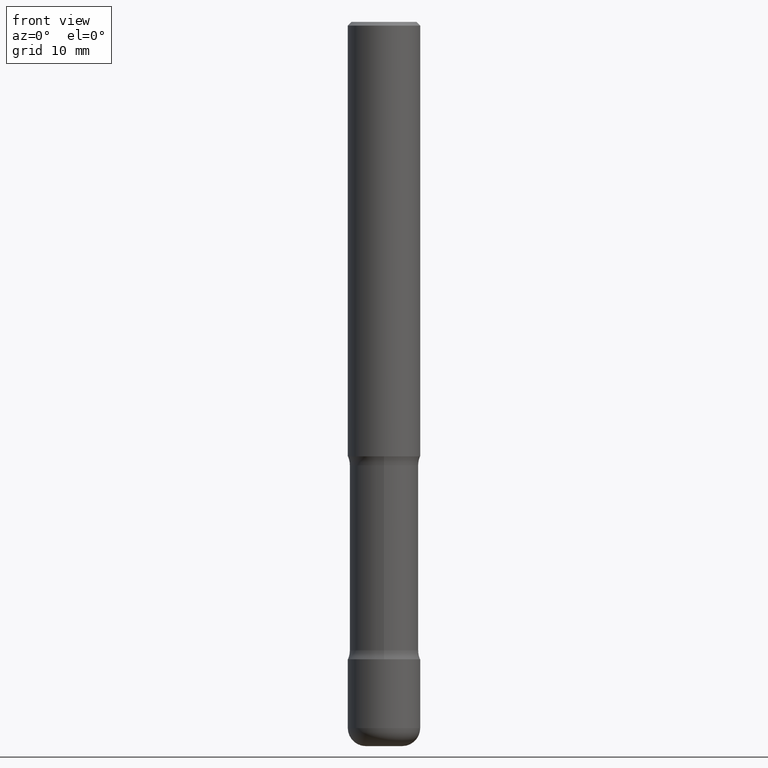
[diagram: clean part render]
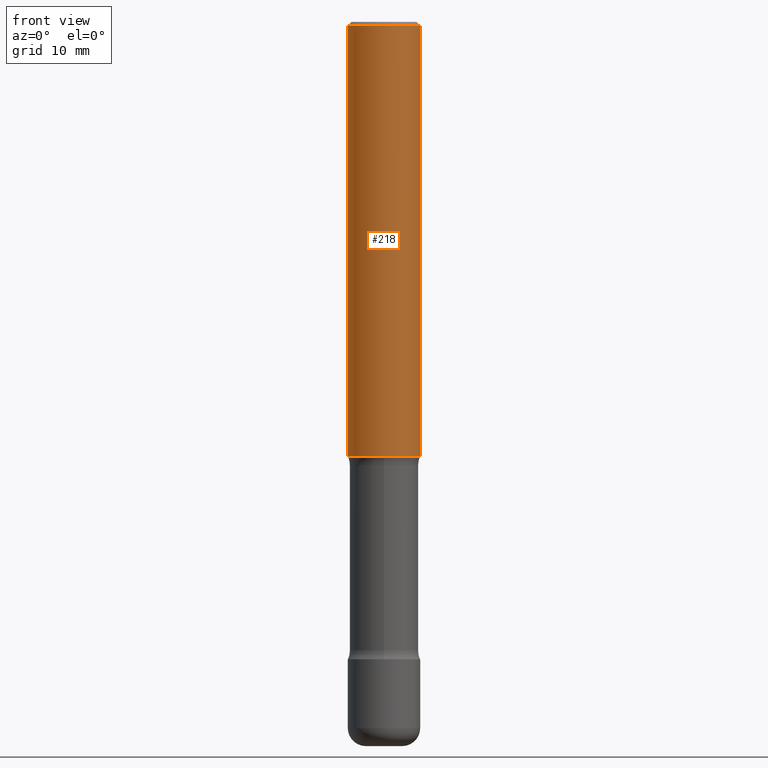
[diagram: same view with one face highlighted and labeled with its STEP entity id]
A machine part, front view. The second image highlights one B-rep face of the part: STEP entity #218.
In plain terms, the highlighted cylindrical surface (edge-blend (fillet) strip) has radius 5 mm, axis along (-0, 0, 1).
Its self-contained STEP definition (entity closure, byte-faithful):
#48 = AXIS2_PLACEMENT_3D ( 'NONE', #237, #116, #245 ) ;
#69 = CARTESIAN_POINT ( 'NONE',  ( 0.1968500000000000250, -1.374596203102541608E-15, 9.598753983154300858E-30 ) ) ;
#83 = VECTOR ( 'NONE', #363, 39.37007874015748143 ) ;
#88 = LINE ( 'NONE', #293, #250 ) ;
#92 = ORIENTED_EDGE ( 'NONE', *, *, #132, .T. ) ;
#95 = DIRECTION ( 'NONE',  ( -2.445468806185136877E-29, 3.491481338843145188E-15, 1.000000000000000000 ) ) ;
#98 = DIRECTION ( 'NONE',  ( -2.445468806185136597E-29, 3.491481338843145583E-15, 1.000000000000000000 ) ) ;
#105 = CYLINDRICAL_SURFACE ( 'NONE', #155, 0.1968500000000000250 ) ;
#109 = DIRECTION ( 'NONE',  ( 1.000000000000000000, -6.982962677686269866E-15, 0.000000000000000000 ) ) ;
#116 = DIRECTION ( 'NONE',  ( -2.445468806185136597E-29, 3.491481338843145583E-15, 1.000000000000000000 ) ) ;
#123 = VERTEX_POINT ( 'NONE', #284 ) ;
#131 = CARTESIAN_POINT ( 'NONE',  ( 0.1968499999999999139, -1.420318657638188530E-15, -0.02000000000000006981 ) ) ;
#132 = EDGE_CURVE ( 'NONE', #387, #487, #455, .T. ) ;
#134 = CARTESIAN_POINT ( 'NONE',  ( 0.1968500000000001082, -9.622173421717824390E-15, -2.362200000000000966 ) ) ;
#155 = AXIS2_PLACEMENT_3D ( 'NONE', #429, #344, #244 ) ;
#177 = EDGE_CURVE ( 'NONE', #123, #487, #497, .T. ) ;
#218 = ADVANCED_FACE ( 'NONE', ( #249 ), #105, .T. ) ;
#225 = VERTEX_POINT ( 'NONE', #370 ) ;
#237 = CARTESIAN_POINT ( 'NONE',  ( 4.890937612370289799E-31, -6.982962677686315028E-17, -0.02000000000000006981 ) ) ;
#244 = DIRECTION ( 'NONE',  ( 1.000000000000000000, -6.982962677686265922E-15, 4.876176775795935793E-29 ) ) ;
#245 = DIRECTION ( 'NONE',  ( 1.000000000000000000, -6.982962677686266711E-15, 0.000000000000000000 ) ) ;
#249 = FACE_OUTER_BOUND ( 'NONE', #485, .T. ) ;
#250 = VECTOR ( 'NONE', #95, 39.37007874015748143 ) ;
#259 = ORIENTED_EDGE ( 'NONE', *, *, #311, .T. ) ;
#284 = CARTESIAN_POINT ( 'NONE',  ( -0.1968499999999999139, 1.304766576325677916E-15, -0.02000000000000006981 ) ) ;
#293 = CARTESIAN_POINT ( 'NONE',  ( -0.1968500000000000250, 1.398703375343757393E-15, -9.682923725166783677E-30 ) ) ;
#311 = EDGE_CURVE ( 'NONE', #225, #387, #445, .T. ) ;
#313 = EDGE_CURVE ( 'NONE', #225, #123, #88, .T. ) ;
#344 = DIRECTION ( 'NONE',  ( -2.445468806185136597E-29, 3.491481338843145583E-15, 1.000000000000000000 ) ) ;
#348 = ORIENTED_EDGE ( 'NONE', *, *, #313, .F. ) ;
#356 = CARTESIAN_POINT ( 'NONE',  ( 5.776686413970530874E-29, -8.247577218615281204E-15, -2.362200000000000966 ) ) ;
#363 = DIRECTION ( 'NONE',  ( -2.445468806185136877E-29, 3.491481338843145188E-15, 1.000000000000000000 ) ) ;
#370 = CARTESIAN_POINT ( 'NONE',  ( -0.1968500000000001082, -2.760000047352312097E-15, -2.362200000000000966 ) ) ;
#387 = VERTEX_POINT ( 'NONE', #134 ) ;
#429 = CARTESIAN_POINT ( 'NONE',  ( 0.000000000000000000, 0.000000000000000000, 0.000000000000000000 ) ) ;
#445 = CIRCLE ( 'NONE', #513, 0.1968500000000001082 ) ;
#455 = LINE ( 'NONE', #69, #83 ) ;
#485 = EDGE_LOOP ( 'NONE', ( #348, #259, #92, #510 ) ) ;
#487 = VERTEX_POINT ( 'NONE', #131 ) ;
#497 = CIRCLE ( 'NONE', #48, 0.1968499999999999139 ) ;
#510 = ORIENTED_EDGE ( 'NONE', *, *, #177, .F. ) ;
#513 = AXIS2_PLACEMENT_3D ( 'NONE', #356, #98, #109 ) ;